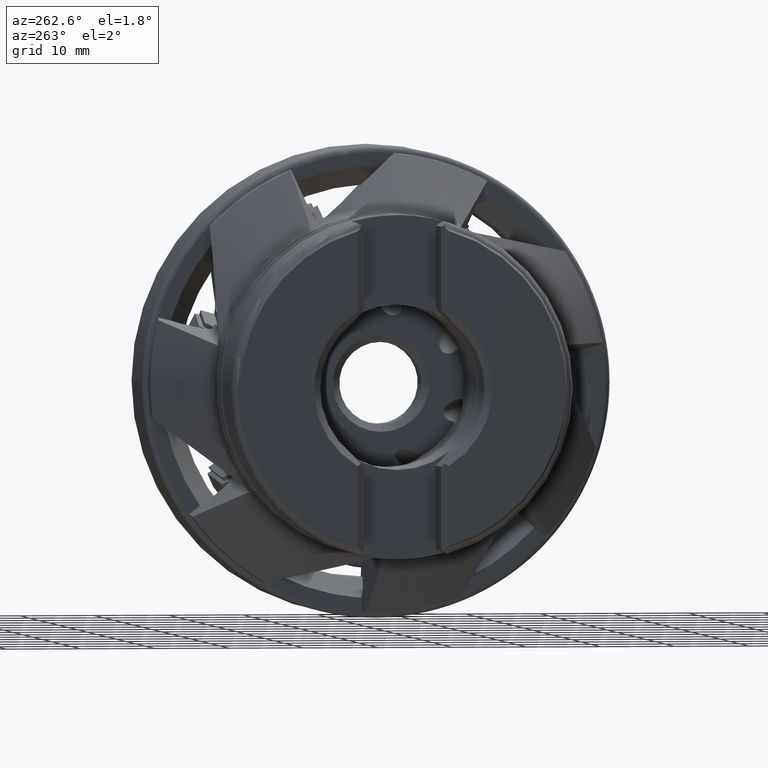
[diagram: clean part render]
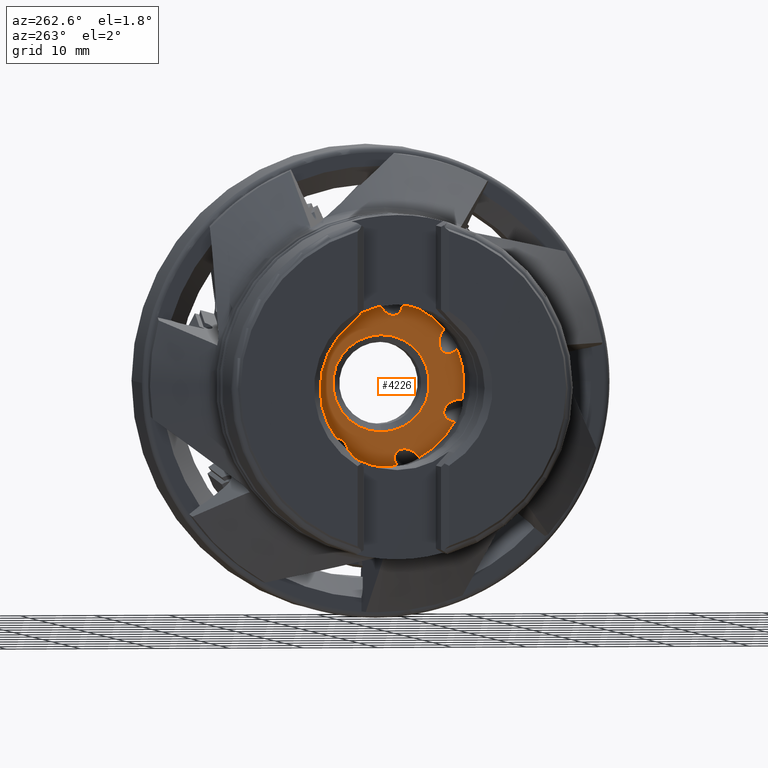
[diagram: same view with one face highlighted and labeled with its STEP entity id]
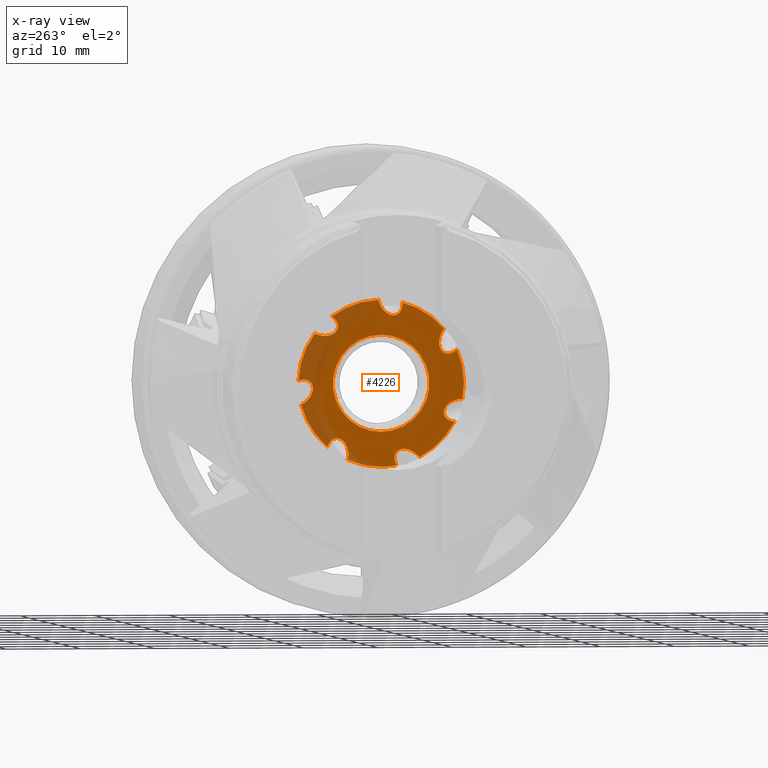
[diagram: x-ray of the same camera — body ghosted, the highlighted face saturated]
A machine part, auxiliary view. The second image highlights one B-rep face of the part: STEP entity #4226.
The next image is the same camera in x-ray: the body ghosted, the highlighted face saturated — about 22% of this face is hidden behind the body in this view.
In plain terms, the highlighted planar face has unit normal (1, 0, -0).
Its self-contained STEP definition (entity closure, byte-faithful):
#13 = VERTEX_POINT ( 'NONE', #174 ) ;
#15 = VERTEX_POINT ( 'NONE', #175 ) ;
#174 = CARTESIAN_POINT ( 'NONE',  ( -16.40000000000000600, 0.3515303172428809200, 11.14445720688356200 ) ) ;
#175 = CARTESIAN_POINT ( 'NONE',  ( -16.40000000000000600, 6.641723959113154100, 8.956003732186715600 ) ) ;
#241 = CARTESIAN_POINT ( 'NONE',  ( -16.40000000000000600, 0.0000000000000000000, 0.0000000000000000000 ) ) ;
#242 = DIRECTION ( 'NONE',  ( 1.000000000000000000, -0.0000000000000000000, -0.0000000000000000000 ) ) ;
#243 = DIRECTION ( 'NONE',  ( 0.0000000000000000000, 0.0000000000000000000, -1.000000000000000000 ) ) ;
#298 = CARTESIAN_POINT ( 'NONE',  ( -16.40000000000000600, -8.433066907711111800, -4.583805835503388200 ) ) ;
#300 = CARTESIAN_POINT ( 'NONE',  ( -16.40000000000000600, -8.981205974697225300, -5.072976831611423900 ) ) ;
#303 = CARTESIAN_POINT ( 'NONE',  ( -16.40000000000000600, -9.869850903234430800, -5.187344517951571800 ) ) ;
#304 = CARTESIAN_POINT ( 'NONE',  ( -16.40000000000000600, -8.433066907711111800, -3.905127831323627500 ) ) ;
#362 = CARTESIAN_POINT ( 'NONE',  ( -16.40000000000000600, 0.0000000000000000000, 0.0000000000000000000 ) ) ;
#363 = DIRECTION ( 'NONE',  ( 1.000000000000000000, -0.0000000000000000000, -0.0000000000000000000 ) ) ;
#364 = DIRECTION ( 'NONE',  ( 0.0000000000000000000, 0.0000000000000000000, -1.000000000000000000 ) ) ;
#370 = CARTESIAN_POINT ( 'NONE',  ( -16.40000000000000600, -1.789064077701839600, -10.27099930675737500 ) ) ;
#374 = CARTESIAN_POINT ( 'NONE',  ( -16.40000000000000600, -1.895010224698242300, -10.61593819141484300 ) ) ;
#375 = CARTESIAN_POINT ( 'NONE',  ( -16.40000000000000600, -2.098122129490359400, -10.95081656908481800 ) ) ;
#376 = CARTESIAN_POINT ( 'NONE',  ( -16.40000000000000600, -1.789064077701841400, -9.944587058142941400 ) ) ;
#380 = CARTESIAN_POINT ( 'NONE',  ( -16.40000000000000600, -9.833923874746975700, 4.118524672586183000 ) ) ;
#395 = CARTESIAN_POINT ( 'NONE',  ( -16.40000000000000600, -9.410299774609102400, 3.922545124711500200 ) ) ;
#399 = CARTESIAN_POINT ( 'NONE',  ( -16.40000000000000600, -10.20938063857533400, 4.482303757743675700 ) ) ;
#401 = CARTESIAN_POINT ( 'NONE',  ( -16.40000000000000600, -8.999421488326213100, 3.922545124711499300 ) ) ;
#421 = CARTESIAN_POINT ( 'NONE',  ( -16.40000000000000600, 0.0000000000000000000, 0.0000000000000000000 ) ) ;
#422 = DIRECTION ( 'NONE',  ( 1.000000000000000000, -0.0000000000000000000, -0.0000000000000000000 ) ) ;
#423 = DIRECTION ( 'NONE',  ( 0.0000000000000000000, 0.0000000000000000000, -1.000000000000000000 ) ) ;
#434 = CARTESIAN_POINT ( 'NONE',  ( -16.40000000000000600, 0.0000000000000000000, 0.0000000000000000000 ) ) ;
#435 = DIRECTION ( 'NONE',  ( 1.000000000000000000, -0.0000000000000000000, -0.0000000000000000000 ) ) ;
#436 = DIRECTION ( 'NONE',  ( 0.0000000000000000000, 0.0000000000000000000, -1.000000000000000000 ) ) ;
#449 = CARTESIAN_POINT ( 'NONE',  ( -16.40000000000000600, 5.922748188918972400, -7.325560299840966600 ) ) ;
#450 = CARTESIAN_POINT ( 'NONE',  ( -16.40000000000000600, 0.0000000000000000000, 0.0000000000000000000 ) ) ;
#451 = DIRECTION ( 'NONE',  ( 1.000000000000000000, -0.0000000000000000000, -0.0000000000000000000 ) ) ;
#452 = DIRECTION ( 'NONE',  ( 0.0000000000000000000, 0.0000000000000000000, -1.000000000000000000 ) ) ;
#457 = CARTESIAN_POINT ( 'NONE',  ( -16.40000000000000600, 4.769398102088069400, -7.325560299840967500 ) ) ;
#462 = CARTESIAN_POINT ( 'NONE',  ( -16.40000000000000600, 4.112839282295684700, -8.666565101432430800 ) ) ;
#463 = CARTESIAN_POINT ( 'NONE',  ( -16.40000000000000600, 4.518680891398648000, -10.19333228153132600 ) ) ;
#574 = CARTESIAN_POINT ( 'NONE',  ( -16.40000000000000600, 11.14313283019260600, 0.3912681033303185300 ) ) ;
#587 = CARTESIAN_POINT ( 'NONE',  ( -16.40000000000000600, 7.253535401651658000, -8.468100387748485500 ) ) ;
#657 = CARTESIAN_POINT ( 'NONE',  ( -16.40000000000000600, 5.922748188918972400, -7.325560299840966600 ) ) ;
#669 = CARTESIAN_POINT ( 'NONE',  ( -16.40000000000000600, -2.098122129490359400, -10.95081656908481800 ) ) ;
#673 = CARTESIAN_POINT ( 'NONE',  ( -16.40000000000000600, -9.869850903234430800, -5.187344517951571800 ) ) ;
#674 = CARTESIAN_POINT ( 'NONE',  ( -16.40000000000000600, -10.20938063857533400, 4.482303757743675700 ) ) ;
#687 = CARTESIAN_POINT ( 'NONE',  ( -16.40000000000000600, 5.797195990538531500, 7.643377221079173700 ) ) ;
#695 = CARTESIAN_POINT ( 'NONE',  ( -16.40000000000000600, -10.94326525161350900, -2.137158307853703800 ) ) ;
#698 = CARTESIAN_POINT ( 'NONE',  ( -16.40000000000000600, 9.174610267238342900, -0.6834050644883571400 ) ) ;
#709 = CARTESIAN_POINT ( 'NONE',  ( -16.40000000000000600, 0.0000000000000000000, -11.14999999999999900 ) ) ;
#710 = CARTESIAN_POINT ( 'NONE',  ( -16.40000000000000600, 8.932263067204372600, 6.673617946680558100 ) ) ;
#724 = CARTESIAN_POINT ( 'NONE',  ( -16.40000000000000600, -2.861038519656982100, 10.77668588152400800 ) ) ;
#726 = CARTESIAN_POINT ( 'NONE',  ( -16.40000000000000600, -5.152116635317923100, -9.888285704614327500 ) ) ;
#746 = CARTESIAN_POINT ( 'NONE',  ( -16.40000000000000600, 4.518680891398648000, -10.19333228153132600 ) ) ;
#747 = CARTESIAN_POINT ( 'NONE',  ( -16.40000000000000600, 10.78681954259982600, -2.822591744370142000 ) ) ;
#751 = CARTESIAN_POINT ( 'NONE',  ( -16.40000000000000600, -1.673001972956535100, 9.062113384831272700 ) ) ;
#780 = CARTESIAN_POINT ( 'NONE',  ( -16.40000000000000600, 7.960204194457795500E-016, -6.500000000000000000 ) ) ;
#804 = CARTESIAN_POINT ( 'NONE',  ( -16.40000000000000600, -8.433066907711111800, -3.905127831323627500 ) ) ;
#805 = CARTESIAN_POINT ( 'NONE',  ( -16.40000000000000600, -8.493911931514224600, 7.223292884805395900 ) ) ;
#811 = CARTESIAN_POINT ( 'NONE',  ( -16.40000000000000600, 0.0000000000000000000, 6.500000000000000000 ) ) ;
#848 = CARTESIAN_POINT ( 'NONE',  ( -16.40000000000000600, -1.789064077701841400, -9.944587058142941400 ) ) ;
#898 = CARTESIAN_POINT ( 'NONE',  ( -16.40000000000000600, -8.999421488326213100, 3.922545124711499300 ) ) ;
#1609 = CARTESIAN_POINT ( 'NONE',  ( -16.40000000000000600, 0.0000000000000000000, 0.0000000000000000000 ) ) ;
#1610 = DIRECTION ( 'NONE',  ( 1.000000000000000000, -0.0000000000000000000, -0.0000000000000000000 ) ) ;
#1611 = DIRECTION ( 'NONE',  ( 0.0000000000000000000, 0.0000000000000000000, -1.000000000000000000 ) ) ;
#1630 = CARTESIAN_POINT ( 'NONE',  ( -16.40000000000000600, 0.0000000000000000000, 0.0000000000000000000 ) ) ;
#1631 = DIRECTION ( 'NONE',  ( 1.000000000000000000, -0.0000000000000000000, -0.0000000000000000000 ) ) ;
#1632 = DIRECTION ( 'NONE',  ( 0.0000000000000000000, 0.0000000000000000000, -1.000000000000000000 ) ) ;
#1647 = CARTESIAN_POINT ( 'NONE',  ( -16.40000000000000600, 0.0000000000000000000, 0.0000000000000000000 ) ) ;
#1648 = DIRECTION ( 'NONE',  ( 1.000000000000000000, -0.0000000000000000000, -0.0000000000000000000 ) ) ;
#1649 = DIRECTION ( 'NONE',  ( 0.0000000000000000000, 0.0000000000000000000, -1.000000000000000000 ) ) ;
#1650 = CARTESIAN_POINT ( 'NONE',  ( -16.40000000000000600, 11.14313283019260600, 0.3912681033303185300 ) ) ;
#1673 = CARTESIAN_POINT ( 'NONE',  ( -16.40000000000000600, 0.0000000000000000000, 0.0000000000000000000 ) ) ;
#1674 = DIRECTION ( 'NONE',  ( 1.000000000000000000, -0.0000000000000000000, -0.0000000000000000000 ) ) ;
#1675 = DIRECTION ( 'NONE',  ( 0.0000000000000000000, 0.0000000000000000000, -1.000000000000000000 ) ) ;
#1676 = CARTESIAN_POINT ( 'NONE',  ( -16.40000000000000600, 9.998240235562999300, 0.7716946830170806600 ) ) ;
#1681 = CARTESIAN_POINT ( 'NONE',  ( -16.40000000000000600, 6.988435664836014600, -7.747220828080656000 ) ) ;
#1682 = CARTESIAN_POINT ( 'NONE',  ( -16.40000000000000600, 7.253535401651658000, -8.468100387748485500 ) ) ;
#1683 = CARTESIAN_POINT ( 'NONE',  ( -16.40000000000000600, 9.174610267238344700, 0.3220513597312658100 ) ) ;
#1684 = CARTESIAN_POINT ( 'NONE',  ( -16.40000000000000600, 9.174610267238342900, -0.6834050644883571400 ) ) ;
#1685 = CARTESIAN_POINT ( 'NONE',  ( -16.40000000000000600, -1.789064077701840100, -8.079047547303813900 ) ) ;
#1686 = CARTESIAN_POINT ( 'NONE',  ( -16.40000000000000600, -1.789064077701841400, -9.944587058142941400 ) ) ;
#1687 = CARTESIAN_POINT ( 'NONE',  ( -16.40000000000000600, 6.497301528682275100, -7.325560299840966600 ) ) ;
#1688 = CARTESIAN_POINT ( 'NONE',  ( -16.40000000000000600, 5.922748188918972400, -7.325560299840966600 ) ) ;
#1689 = CARTESIAN_POINT ( 'NONE',  ( -16.40000000000000600, -8.433066907711111800, -2.867585625850084700 ) ) ;
#1690 = CARTESIAN_POINT ( 'NONE',  ( -16.40000000000000600, -8.433066907711111800, -3.905127831323627500 ) ) ;
#1691 = CARTESIAN_POINT ( 'NONE',  ( -16.40000000000000600, -3.786486713891974000, -8.045608403532041200 ) ) ;
#1692 = CARTESIAN_POINT ( 'NONE',  ( -16.40000000000000600, -5.152116635317923100, -9.888285704614327500 ) ) ;
#1693 = CARTESIAN_POINT ( 'NONE',  ( -16.40000000000000600, -7.462828433811870900, 3.922545124711496600 ) ) ;
#1694 = CARTESIAN_POINT ( 'NONE',  ( -16.40000000000000600, -8.999421488326213100, 3.922545124711499300 ) ) ;
#1695 = CARTESIAN_POINT ( 'NONE',  ( -16.40000000000000600, -9.540687529345961000, -2.087472170921712300 ) ) ;
#1696 = CARTESIAN_POINT ( 'NONE',  ( -16.40000000000000600, -10.94326525161350900, -2.137158307853703800 ) ) ;
#1697 = CARTESIAN_POINT ( 'NONE',  ( -16.40000000000000600, -0.7266696737209423800, 9.062113384831272700 ) ) ;
#1698 = CARTESIAN_POINT ( 'NONE',  ( -16.40000000000000600, -1.673001972956535100, 9.062113384831272700 ) ) ;
#1699 = CARTESIAN_POINT ( 'NONE',  ( -16.40000000000000600, -7.190257696939794700, 5.702308211430478800 ) ) ;
#1700 = CARTESIAN_POINT ( 'NONE',  ( -16.40000000000000600, -8.493911931514224600, 7.223292884805395900 ) ) ;
#1701 = CARTESIAN_POINT ( 'NONE',  ( -16.40000000000000600, 6.100209095945942300, 8.603696138259810100 ) ) ;
#1702 = CARTESIAN_POINT ( 'NONE',  ( -16.40000000000000600, 6.641723959113154100, 8.956003732186715600 ) ) ;
#1703 = CARTESIAN_POINT ( 'NONE',  ( -16.40000000000000600, 0.1197569442215151000, 9.932710138079155400 ) ) ;
#1704 = CARTESIAN_POINT ( 'NONE',  ( -16.40000000000000600, 0.3515303172428809200, 11.14445720688356200 ) ) ;
#1705 = CARTESIAN_POINT ( 'NONE',  ( -16.40000000000000600, 5.797195990538529700, 8.132731232216345400 ) ) ;
#1706 = CARTESIAN_POINT ( 'NONE',  ( -16.40000000000000600, 5.797195990538531500, 7.643377221079173700 ) ) ;
#1707 = CARTESIAN_POINT ( 'NONE',  ( -16.40000000000000600, 0.0000000000000000000, 0.0000000000000000000 ) ) ;
#1708 = DIRECTION ( 'NONE',  ( 1.000000000000000000, -0.0000000000000000000, -0.0000000000000000000 ) ) ;
#1709 = DIRECTION ( 'NONE',  ( 0.0000000000000000000, 0.0000000000000000000, -1.000000000000000000 ) ) ;
#3241 =( BOUNDED_CURVE ( )  B_SPLINE_CURVE ( 3, ( #1682, #1681, #1687, #1688 ),
 .UNSPECIFIED., .F., .F. ) 
 B_SPLINE_CURVE_WITH_KNOTS ( ( 4, 4 ),
 ( 5.191963164742311700, 6.283185307179586200 ),
 .UNSPECIFIED. ) 
 CURVE ( )  GEOMETRIC_REPRESENTATION_ITEM ( )  RATIONAL_B_SPLINE_CURVE ( ( 1.000000000000000000, 0.9032068938468149600, 0.9032068938468149600, 1.000000000000000000 ) ) 
 REPRESENTATION_ITEM ( '' )  );
#3250 =( BOUNDED_CURVE ( )  B_SPLINE_CURVE ( 3, ( #1702, #1701, #1705, #1706 ),
 .UNSPECIFIED., .F., .T. ) 
 B_SPLINE_CURVE_WITH_KNOTS ( ( 4, 4 ),
 ( 5.191963164742304600, 6.123172590620282700 ),
 .UNSPECIFIED. ) 
 CURVE ( )  GEOMETRIC_REPRESENTATION_ITEM ( )  RATIONAL_B_SPLINE_CURVE ( ( 1.000000000000000000, 0.9290334900851704400, 0.9290334900851704400, 1.000000000000000000 ) ) 
 REPRESENTATION_ITEM ( '' )  );
#3251 =( BOUNDED_CURVE ( )  B_SPLINE_CURVE ( 3, ( #1686, #1685, #1691, #1692 ),
 .UNSPECIFIED., .F., .F. ) 
 B_SPLINE_CURVE_WITH_KNOTS ( ( 4, 4 ),
 ( 5.769733860915015300, 8.213561154527942800 ),
 .UNSPECIFIED. ) 
 CURVE ( )  GEOMETRIC_REPRESENTATION_ITEM ( )  RATIONAL_B_SPLINE_CURVE ( ( 1.000000000000000000, 0.5612320091373158600, 0.5612320091373158600, 1.000000000000000000 ) ) 
 REPRESENTATION_ITEM ( '' )  );
#3254 =( BOUNDED_CURVE ( )  B_SPLINE_CURVE ( 3, ( #1698, #1697, #1703, #1704 ),
 .UNSPECIFIED., .F., .F. ) 
 B_SPLINE_CURVE_WITH_KNOTS ( ( 4, 4 ),
 ( 0.3282087422429254000, 1.930375847348362500 ),
 .UNSPECIFIED. ) 
 CURVE ( )  GEOMETRIC_REPRESENTATION_ITEM ( )  RATIONAL_B_SPLINE_CURVE ( ( 1.000000000000000000, 0.7972860049859740200, 0.7972860049859740200, 1.000000000000000000 ) ) 
 REPRESENTATION_ITEM ( '' )  );
#3256 =( BOUNDED_CURVE ( )  B_SPLINE_CURVE ( 3, ( #1650, #1676, #1683, #1684 ),
 .UNSPECIFIED., .F., .F. ) 
 B_SPLINE_CURVE_WITH_KNOTS ( ( 4, 4 ),
 ( 5.191963164742309900, 6.796636753444170500 ),
 .UNSPECIFIED. ) 
 CURVE ( )  GEOMETRIC_REPRESENTATION_ITEM ( )  RATIONAL_B_SPLINE_CURVE ( ( 1.000000000000000000, 0.7966856633278448500, 0.7966856633278448500, 1.000000000000000000 ) ) 
 REPRESENTATION_ITEM ( '' )  );
#3271 =( BOUNDED_CURVE ( )  B_SPLINE_CURVE ( 3, ( #1694, #1693, #1699, #1700 ),
 .UNSPECIFIED., .F., .F. ) 
 B_SPLINE_CURVE_WITH_KNOTS ( ( 4, 4 ),
 ( 5.954976564936671000, 8.213561154527951700 ),
 .UNSPECIFIED. ) 
 CURVE ( )  GEOMETRIC_REPRESENTATION_ITEM ( )  RATIONAL_B_SPLINE_CURVE ( ( 1.000000000000000000, 0.6181998388296492400, 0.6181998388296492400, 1.000000000000000000 ) ) 
 REPRESENTATION_ITEM ( '' )  );
#3275 =( BOUNDED_CURVE ( )  B_SPLINE_CURVE ( 3, ( #1690, #1689, #1695, #1696 ),
 .UNSPECIFIED., .F., .F. ) 
 B_SPLINE_CURVE_WITH_KNOTS ( ( 4, 4 ),
 ( 0.1600127165593127100, 1.930375847348358800 ),
 .UNSPECIFIED. ) 
 CURVE ( )  GEOMETRIC_REPRESENTATION_ITEM ( )  RATIONAL_B_SPLINE_CURVE ( ( 1.000000000000000000, 0.7554326499138088700, 0.7554326499138088700, 1.000000000000000000 ) ) 
 REPRESENTATION_ITEM ( '' )  );
#3955 =( BOUNDED_CURVE ( )  B_SPLINE_CURVE ( 3, ( #399, #380, #395, #401 ),
 .UNSPECIFIED., .F., .F. ) 
 B_SPLINE_CURVE_WITH_KNOTS ( ( 4, 4 ),
 ( 5.191963164742309900, 5.954976564936671000 ),
 .UNSPECIFIED. ) 
 CURVE ( )  GEOMETRIC_REPRESENTATION_ITEM ( )  RATIONAL_B_SPLINE_CURVE ( ( 1.000000000000000000, 0.9520698105193835500, 0.9520698105193835500, 1.000000000000000000 ) ) 
 REPRESENTATION_ITEM ( '' )  );
#3959 =( BOUNDED_CURVE ( )  B_SPLINE_CURVE ( 3, ( #449, #457, #462, #463 ),
 .UNSPECIFIED., .F., .F. ) 
 B_SPLINE_CURVE_WITH_KNOTS ( ( 4, 4 ),
 ( 0.0000000000000000000, 1.930375847348362800 ),
 .UNSPECIFIED. ) 
 CURVE ( )  GEOMETRIC_REPRESENTATION_ITEM ( )  RATIONAL_B_SPLINE_CURVE ( ( 1.000000000000000000, 0.7128415892040971300, 0.7128415892040971300, 1.000000000000000000 ) ) 
 REPRESENTATION_ITEM ( '' )  );
#3980 =( BOUNDED_CURVE ( )  B_SPLINE_CURVE ( 3, ( #303, #300, #298, #304 ),
 .UNSPECIFIED., .F., .F. ) 
 B_SPLINE_CURVE_WITH_KNOTS ( ( 4, 4 ),
 ( 5.191963164742317000, 6.443198023738898600 ),
 .UNSPECIFIED. ) 
 CURVE ( )  GEOMETRIC_REPRESENTATION_ITEM ( )  RATIONAL_B_SPLINE_CURVE ( ( 1.000000000000000000, 0.8737344724234286100, 0.8737344724234286100, 1.000000000000000000 ) ) 
 REPRESENTATION_ITEM ( '' )  );
#4003 =( BOUNDED_CURVE ( )  B_SPLINE_CURVE ( 3, ( #375, #374, #370, #376 ),
 .UNSPECIFIED., .F., .F. ) 
 B_SPLINE_CURVE_WITH_KNOTS ( ( 4, 4 ),
 ( 5.191963164742318800, 5.769733860915015300 ),
 .UNSPECIFIED. ) 
 CURVE ( )  GEOMETRIC_REPRESENTATION_ITEM ( )  RATIONAL_B_SPLINE_CURVE ( ( 1.000000000000000000, 0.9723746782381088600, 0.9723746782381088600, 1.000000000000000000 ) ) 
 REPRESENTATION_ITEM ( '' )  );
#4226 = ADVANCED_FACE ( 'NONE', ( #8401, #8389 ), #9372, .F. ) ;
#4508 = EDGE_CURVE ( 'NONE', #6703, #6722, #8391, .T. ) ;
#4529 = EDGE_CURVE ( 'NONE', #6736, #6762, #8435, .T. ) ;
#4538 = EDGE_CURVE ( 'NONE', #6711, #6758, #8465, .T. ) ;
#4835 = EDGE_CURVE ( 'NONE', #6687, #6721, #10162, .T. ) ;
#4846 = EDGE_CURVE ( 'NONE', #6691, #6812, #3980, .T. ) ;
#4856 = EDGE_CURVE ( 'NONE', #6819, #6788, #10179, .T. ) ;
#4861 = EDGE_CURVE ( 'NONE', #6687, #6856, #4003, .T. ) ;
#4867 = EDGE_CURVE ( 'NONE', #6692, #6906, #3955, .T. ) ;
#4872 = EDGE_CURVE ( 'NONE', #6736, #6813, #10184, .T. ) ;
#4877 = EDGE_CURVE ( 'NONE', #6691, #6738, #10204, .T. ) ;
#4880 = EDGE_CURVE ( 'NONE', #6692, #6709, #10207, .T. ) ;
#4884 = EDGE_CURVE ( 'NONE', #6677, #6757, #3959, .T. ) ;
#4995 = VERTEX_POINT ( 'NONE', #574 ) ;
#5006 = VERTEX_POINT ( 'NONE', #587 ) ;
#5132 = ORIENTED_EDGE ( 'NONE', *, *, #7498, .F. ) ;
#5133 = ORIENTED_EDGE ( 'NONE', *, *, #7502, .T. ) ;
#5134 = ORIENTED_EDGE ( 'NONE', *, *, #4538, .T. ) ;
#5135 = ORIENTED_EDGE ( 'NONE', *, *, #7496, .F. ) ;
#5136 = ORIENTED_EDGE ( 'NONE', *, *, #7503, .T. ) ;
#5137 = ORIENTED_EDGE ( 'NONE', *, *, #4884, .T. ) ;
#5138 = ORIENTED_EDGE ( 'NONE', *, *, #7494, .F. ) ;
#5139 = ORIENTED_EDGE ( 'NONE', *, *, #4835, .F. ) ;
#5140 = ORIENTED_EDGE ( 'NONE', *, *, #4861, .T. ) ;
#5141 = ORIENTED_EDGE ( 'NONE', *, *, #7504, .T. ) ;
#5142 = ORIENTED_EDGE ( 'NONE', *, *, #4877, .F. ) ;
#5143 = ORIENTED_EDGE ( 'NONE', *, *, #4846, .T. ) ;
#5144 = ORIENTED_EDGE ( 'NONE', *, *, #7505, .T. ) ;
#5145 = ORIENTED_EDGE ( 'NONE', *, *, #4880, .F. ) ;
#5146 = ORIENTED_EDGE ( 'NONE', *, *, #4867, .T. ) ;
#5147 = ORIENTED_EDGE ( 'NONE', *, *, #7506, .T. ) ;
#5148 = ORIENTED_EDGE ( 'NONE', *, *, #4872, .F. ) ;
#5149 = ORIENTED_EDGE ( 'NONE', *, *, #4529, .T. ) ;
#5150 = ORIENTED_EDGE ( 'NONE', *, *, #7507, .T. ) ;
#5151 = ORIENTED_EDGE ( 'NONE', *, *, #7500, .F. ) ;
#5152 = ORIENTED_EDGE ( 'NONE', *, *, #7508, .T. ) ;
#5153 = ORIENTED_EDGE ( 'NONE', *, *, #4508, .T. ) ;
#5154 = ORIENTED_EDGE ( 'NONE', *, *, #4856, .T. ) ;
#5155 = ORIENTED_EDGE ( 'NONE', *, *, #7509, .T. ) ;
#6677 = VERTEX_POINT ( 'NONE', #657 ) ;
#6687 = VERTEX_POINT ( 'NONE', #669 ) ;
#6691 = VERTEX_POINT ( 'NONE', #673 ) ;
#6692 = VERTEX_POINT ( 'NONE', #674 ) ;
#6703 = VERTEX_POINT ( 'NONE', #687 ) ;
#6709 = VERTEX_POINT ( 'NONE', #695 ) ;
#6711 = VERTEX_POINT ( 'NONE', #698 ) ;
#6721 = VERTEX_POINT ( 'NONE', #709 ) ;
#6722 = VERTEX_POINT ( 'NONE', #710 ) ;
#6736 = VERTEX_POINT ( 'NONE', #724 ) ;
#6738 = VERTEX_POINT ( 'NONE', #726 ) ;
#6757 = VERTEX_POINT ( 'NONE', #746 ) ;
#6758 = VERTEX_POINT ( 'NONE', #747 ) ;
#6762 = VERTEX_POINT ( 'NONE', #751 ) ;
#6788 = VERTEX_POINT ( 'NONE', #780 ) ;
#6812 = VERTEX_POINT ( 'NONE', #804 ) ;
#6813 = VERTEX_POINT ( 'NONE', #805 ) ;
#6819 = VERTEX_POINT ( 'NONE', #811 ) ;
#6856 = VERTEX_POINT ( 'NONE', #848 ) ;
#6906 = VERTEX_POINT ( 'NONE', #898 ) ;
#7183 = EDGE_LOOP ( 'NONE', ( #5154, #5155 ) ) ;
#7494 = EDGE_CURVE ( 'NONE', #6721, #6757, #10371, .T. ) ;
#7496 = EDGE_CURVE ( 'NONE', #5006, #6758, #10372, .T. ) ;
#7498 = EDGE_CURVE ( 'NONE', #4995, #6722, #10373, .T. ) ;
#7500 = EDGE_CURVE ( 'NONE', #15, #13, #10374, .T. ) ;
#7502 = EDGE_CURVE ( 'NONE', #4995, #6711, #3256, .T. ) ;
#7503 = EDGE_CURVE ( 'NONE', #5006, #6677, #3241, .T. ) ;
#7504 = EDGE_CURVE ( 'NONE', #6856, #6738, #3251, .T. ) ;
#7505 = EDGE_CURVE ( 'NONE', #6812, #6709, #3275, .T. ) ;
#7506 = EDGE_CURVE ( 'NONE', #6906, #6813, #3271, .T. ) ;
#7507 = EDGE_CURVE ( 'NONE', #6762, #13, #3254, .T. ) ;
#7508 = EDGE_CURVE ( 'NONE', #15, #6703, #3250, .T. ) ;
#7509 = EDGE_CURVE ( 'NONE', #6788, #6819, #10375, .T. ) ;
#7986 = AXIS2_PLACEMENT_3D ( 'NONE', #9418, #9383, #9426 ) ;
#8379 = EDGE_LOOP ( 'NONE', ( #5132, #5133, #5134, #5135, #5136, #5137, #5138, #5139, #5140, #5141, #5142, #5143, #5144, #5145, #5146, #5147, #5148, #5149, #5150, #5151, #5152, #5153 ) ) ;
#8389 = FACE_BOUND ( 'NONE', #7183, .T. ) ;
#8391 =( BOUNDED_CURVE ( )  B_SPLINE_CURVE ( 3, ( #9697, #9706, #9715, #9716 ),
 .UNSPECIFIED., .F., .F. ) 
 B_SPLINE_CURVE_WITH_KNOTS ( ( 4, 4 ),
 ( 6.123172590620282700, 8.213561154527955200 ),
 .UNSPECIFIED. ) 
 CURVE ( )  GEOMETRIC_REPRESENTATION_ITEM ( )  RATIONAL_B_SPLINE_CURVE ( ( 1.000000000000000000, 0.6678225850819334800, 0.6678225850819334800, 1.000000000000000000 ) ) 
 REPRESENTATION_ITEM ( '' )  );
#8401 = FACE_OUTER_BOUND ( 'NONE', #8379, .T. ) ;
#8435 =( BOUNDED_CURVE ( )  B_SPLINE_CURVE ( 3, ( #9812, #9803, #9807, #9813 ),
 .UNSPECIFIED., .F., .F. ) 
 B_SPLINE_CURVE_WITH_KNOTS ( ( 4, 4 ),
 ( 5.191963164742311700, 6.611394049422511200 ),
 .UNSPECIFIED. ) 
 CURVE ( )  GEOMETRIC_REPRESENTATION_ITEM ( )  RATIONAL_B_SPLINE_CURVE ( ( 1.000000000000000000, 0.8390315530513929900, 0.8390315530513929900, 1.000000000000000000 ) ) 
 REPRESENTATION_ITEM ( '' )  );
#8465 =( BOUNDED_CURVE ( )  B_SPLINE_CURVE ( 3, ( #9852, #9850, #9854, #9855 ),
 .UNSPECIFIED., .F., .F. ) 
 B_SPLINE_CURVE_WITH_KNOTS ( ( 4, 4 ),
 ( 0.5134514462645842800, 1.930375847348365200 ),
 .UNSPECIFIED. ) 
 CURVE ( )  GEOMETRIC_REPRESENTATION_ITEM ( )  RATIONAL_B_SPLINE_CURVE ( ( 1.000000000000000000, 0.8395755790120491600, 0.8395755790120491600, 1.000000000000000000 ) ) 
 REPRESENTATION_ITEM ( '' )  );
#9372 = PLANE ( 'NONE',  #7986 ) ;
#9383 = DIRECTION ( 'NONE',  ( 1.000000000000000000, 0.0000000000000000000, -0.0000000000000000000 ) ) ;
#9418 = CARTESIAN_POINT ( 'NONE',  ( -16.40000000000000600, 6.500000000000000000, 0.0000000000000000000 ) ) ;
#9426 = DIRECTION ( 'NONE',  ( -0.0000000000000000000, 0.0000000000000000000, -1.000000000000000000 ) ) ;
#9697 = CARTESIAN_POINT ( 'NONE',  ( -16.40000000000000600, 5.797195990538531500, 7.643377221079173700 ) ) ;
#9706 = CARTESIAN_POINT ( 'NONE',  ( -16.40000000000000600, 5.797195990538527100, 6.331751815414255800 ) ) ;
#9715 = CARTESIAN_POINT ( 'NONE',  ( -16.40000000000000600, 7.362016321915033900, 5.847711444981802000 ) ) ;
#9716 = CARTESIAN_POINT ( 'NONE',  ( -16.40000000000000600, 8.932263067204372600, 6.673617946680558100 ) ) ;
#9803 = CARTESIAN_POINT ( 'NONE',  ( -16.40000000000000600, -2.960972408115667400, 9.743284627421283900 ) ) ;
#9807 = CARTESIAN_POINT ( 'NONE',  ( -16.40000000000000600, -2.488985173793841100, 9.062113384831272700 ) ) ;
#9812 = CARTESIAN_POINT ( 'NONE',  ( -16.40000000000000600, -2.861038519656982100, 10.77668588152400800 ) ) ;
#9813 = CARTESIAN_POINT ( 'NONE',  ( -16.40000000000000600, -1.673001972956535100, 9.062113384831272700 ) ) ;
#9850 = CARTESIAN_POINT ( 'NONE',  ( -16.40000000000000600, 9.174610267238342900, -1.546842684238223000 ) ) ;
#9852 = CARTESIAN_POINT ( 'NONE',  ( -16.40000000000000600, 9.174610267238342900, -0.6834050644883571400 ) ) ;
#9854 = CARTESIAN_POINT ( 'NONE',  ( -16.40000000000000600, 9.814699266038829300, -2.396155413732266900 ) ) ;
#9855 = CARTESIAN_POINT ( 'NONE',  ( -16.40000000000000600, 10.78681954259982600, -2.822591744370142000 ) ) ;
#10162 = CIRCLE ( 'NONE', #10492, 11.14999999999999900 ) ;
#10179 = CIRCLE ( 'NONE', #10497, 6.500000000000000000 ) ;
#10184 = CIRCLE ( 'NONE', #10499, 11.14999999999999900 ) ;
#10204 = CIRCLE ( 'NONE', #10501, 11.14999999999999900 ) ;
#10207 = CIRCLE ( 'NONE', #10502, 11.14999999999999900 ) ;
#10371 = CIRCLE ( 'NONE', #10566, 11.14999999999999900 ) ;
#10372 = CIRCLE ( 'NONE', #10567, 11.14999999999999900 ) ;
#10373 = CIRCLE ( 'NONE', #10568, 11.14999999999999900 ) ;
#10374 = CIRCLE ( 'NONE', #10569, 11.14999999999999900 ) ;
#10375 = CIRCLE ( 'NONE', #10570, 6.500000000000000000 ) ;
#10492 = AXIS2_PLACEMENT_3D ( 'NONE', #241, #242, #243 ) ;
#10497 = AXIS2_PLACEMENT_3D ( 'NONE', #362, #363, #364 ) ;
#10499 = AXIS2_PLACEMENT_3D ( 'NONE', #421, #422, #423 ) ;
#10501 = AXIS2_PLACEMENT_3D ( 'NONE', #434, #435, #436 ) ;
#10502 = AXIS2_PLACEMENT_3D ( 'NONE', #450, #451, #452 ) ;
#10566 = AXIS2_PLACEMENT_3D ( 'NONE', #1609, #1610, #1611 ) ;
#10567 = AXIS2_PLACEMENT_3D ( 'NONE', #1630, #1631, #1632 ) ;
#10568 = AXIS2_PLACEMENT_3D ( 'NONE', #1647, #1648, #1649 ) ;
#10569 = AXIS2_PLACEMENT_3D ( 'NONE', #1673, #1674, #1675 ) ;
#10570 = AXIS2_PLACEMENT_3D ( 'NONE', #1707, #1708, #1709 ) ;